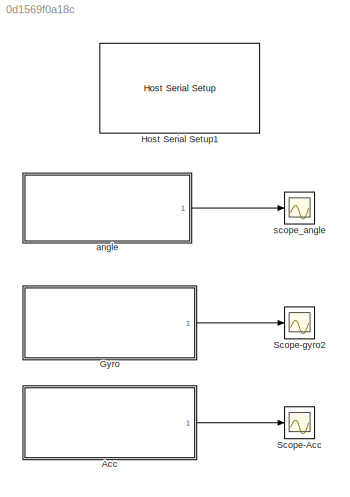
MODEL slx_0d1569f0a18c
KIND model
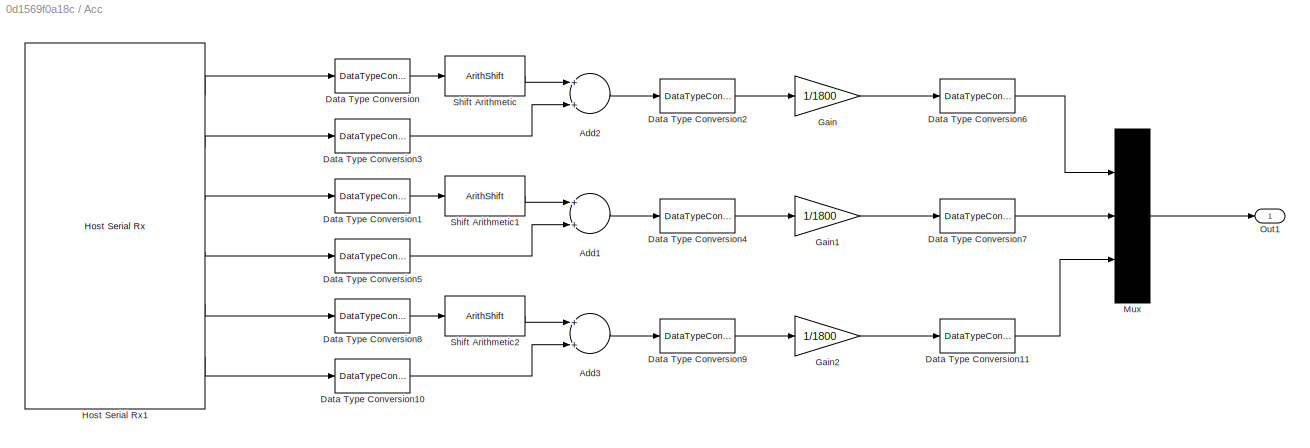
BLOCK [SubSystem] Acc
  Ports = [0, 1]
  RequestExecContextInheritance = off
BLOCK [Sum] Acc/Add1
  InputSameDT = off
  OutDataTypeStr = Inherit: Inherit via internal rule
  Ports = [2, 1]
  SaturateOnIntegerOverflow = off
BLOCK [Sum] Acc/Add2
  InputSameDT = off
  OutDataTypeStr = Inherit: Inherit via internal rule
  Ports = [2, 1]
  SaturateOnIntegerOverflow = off
BLOCK [Sum] Acc/Add3
  InputSameDT = off
  OutDataTypeStr = Inherit: Inherit via internal rule
  Ports = [2, 1]
  SaturateOnIntegerOverflow = off
BLOCK [DataTypeConversion] Acc/Data Type Conversion
  OutDataTypeStr = uint16
  RndMeth = Floor
  SaturateOnIntegerOverflow = off
BLOCK [DataTypeConversion] Acc/Data Type Conversion1
  OutDataTypeStr = uint16
  RndMeth = Floor
  SaturateOnIntegerOverflow = off
BLOCK [DataTypeConversion] Acc/Data Type Conversion10
  OutDataTypeStr = uint16
  RndMeth = Floor
  SaturateOnIntegerOverflow = off
BLOCK [DataTypeConversion] Acc/Data Type Conversion11
  OutDataTypeStr = single
  RndMeth = Floor
  SaturateOnIntegerOverflow = off
BLOCK [DataTypeConversion] Acc/Data Type Conversion2
  OutDataTypeStr = int16
  RndMeth = Floor
  SaturateOnIntegerOverflow = off
BLOCK [DataTypeConversion] Acc/Data Type Conversion3
  OutDataTypeStr = uint16
  RndMeth = Floor
  SaturateOnIntegerOverflow = off
BLOCK [DataTypeConversion] Acc/Data Type Conversion4
  OutDataTypeStr = int16
  RndMeth = Floor
  SaturateOnIntegerOverflow = off
BLOCK [DataTypeConversion] Acc/Data Type Conversion5
  OutDataTypeStr = uint16
  RndMeth = Floor
  SaturateOnIntegerOverflow = off
BLOCK [DataTypeConversion] Acc/Data Type Conversion6
  OutDataTypeStr = single
  RndMeth = Floor
  SaturateOnIntegerOverflow = off
BLOCK [DataTypeConversion] Acc/Data Type Conversion7
  OutDataTypeStr = single
  RndMeth = Floor
  SaturateOnIntegerOverflow = off
BLOCK [DataTypeConversion] Acc/Data Type Conversion8
  OutDataTypeStr = uint16
  RndMeth = Floor
  SaturateOnIntegerOverflow = off
BLOCK [DataTypeConversion] Acc/Data Type Conversion9
  OutDataTypeStr = int16
  RndMeth = Floor
  SaturateOnIntegerOverflow = off
BLOCK [Gain] Acc/Gain
  Gain = 1/1800
  OutDataTypeStr = Inherit: Inherit via internal rule
  ParamDataTypeStr = Inherit: Inherit via internal rule
  SaturateOnIntegerOverflow = off
BLOCK [Gain] Acc/Gain1
  Gain = 1/1800
  OutDataTypeStr = Inherit: Inherit via internal rule
  ParamDataTypeStr = Inherit: Inherit via internal rule
  SaturateOnIntegerOverflow = off
BLOCK [Gain] Acc/Gain2
  Gain = 1/1800
  OutDataTypeStr = Inherit: Inherit via internal rule
  ParamDataTypeStr = Inherit: Inherit via internal rule
  SaturateOnIntegerOverflow = off
BLOCK [Reference] Acc/Host Serial Rx1  REF=amg_usbconverter_n_connect_lib/Host Serial Rx
  Ports = [0, 6]
  SourceBlock = amg_usbconverter_n_connect_lib/Host Serial Rx
  SourceType = amg_usbconverter_n_connect
  asciiformat = '%d,%f'
  autoport = 'COM4'
  baudrate = 115200
  binheader = 'ff fa'
  binterminator = '0d 0a'
  blockid = AccHostSerialRx1
  cinputportlabel = 0
  compat = 0
  conf = rx
  coutputportlabel = A
  databits = 8
  enablecustomportlabel = off
  enableinitialvalues = off
  flowcontrol = None
  initialvalues = []
  inputportlabel = {}
  inputporttype = []
  inputportwidth = []
  optionstring = []
  outputportlabel = {'uint8','uint8','uint8','uint8','uint8','uint8'}
  outputporttype = [3 3 3 3 3 3]
  outputportwidth = [1 1 1 1 1 1]
  packetmode = Binary
  parity = None
  port = <auto>
  portpinstr = 0
  porttype_double = 0
  porttype_int16 = 0
  porttype_int32 = 0
  porttype_int8 = 0
  porttype_single = 0
  porttype_uint16 = 0
  porttype_uint32 = 0
  porttype_uint8 = 6
  rx_asciiterminator = CRLF (0x0D 0x0A - "\r\n")
  sampletime = -1
  stopbit = 1
  timeout = 5
  transfer = Blocking
  tx_asciiterminator = CRLF (0x0D 0x0A - "\r\n")
BLOCK [Mux] Acc/Mux
  DisplayOption = bar
  Inputs = 3
  Ports = [3, 1]
BLOCK [Outport] Acc/Out1
  IconDisplay = Port number
BLOCK [ArithShift] Acc/Shift Arithmetic
  BitShiftDirection = Left
  BitShiftNumber = 8
  InputPortMap = u0
  Ports = [1, 1]
BLOCK [ArithShift] Acc/Shift Arithmetic1
  BitShiftDirection = Left
  BitShiftNumber = 8
  InputPortMap = u0
  Ports = [1, 1]
BLOCK [ArithShift] Acc/Shift Arithmetic2
  BitShiftDirection = Left
  BitShiftNumber = 8
  InputPortMap = u0
  Ports = [1, 1]
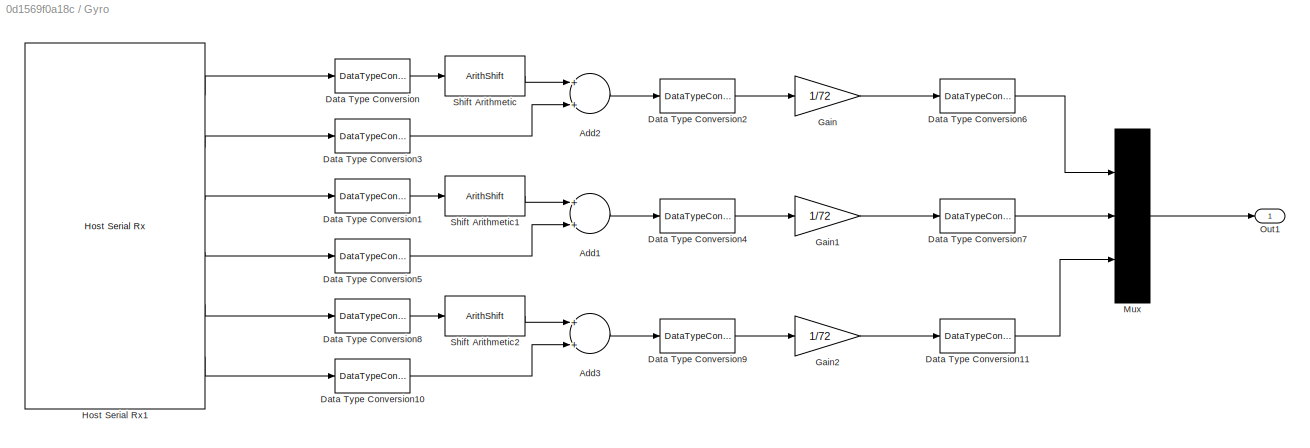
BLOCK [SubSystem] Gyro
  Commented = on
  Ports = [0, 1]
  RequestExecContextInheritance = off
BLOCK [Sum] Gyro/Add1
  InputSameDT = off
  OutDataTypeStr = Inherit: Inherit via internal rule
  Ports = [2, 1]
  SaturateOnIntegerOverflow = off
BLOCK [Sum] Gyro/Add2
  InputSameDT = off
  OutDataTypeStr = Inherit: Inherit via internal rule
  Ports = [2, 1]
  SaturateOnIntegerOverflow = off
BLOCK [Sum] Gyro/Add3
  InputSameDT = off
  OutDataTypeStr = Inherit: Inherit via internal rule
  Ports = [2, 1]
  SaturateOnIntegerOverflow = off
BLOCK [DataTypeConversion] Gyro/Data Type Conversion
  OutDataTypeStr = uint16
  RndMeth = Floor
  SaturateOnIntegerOverflow = off
BLOCK [DataTypeConversion] Gyro/Data Type Conversion1
  OutDataTypeStr = uint16
  RndMeth = Floor
  SaturateOnIntegerOverflow = off
BLOCK [DataTypeConversion] Gyro/Data Type Conversion10
  OutDataTypeStr = uint16
  RndMeth = Floor
  SaturateOnIntegerOverflow = off
BLOCK [DataTypeConversion] Gyro/Data Type Conversion11
  OutDataTypeStr = single
  RndMeth = Floor
  SaturateOnIntegerOverflow = off
BLOCK [DataTypeConversion] Gyro/Data Type Conversion2
  OutDataTypeStr = int16
  RndMeth = Floor
  SaturateOnIntegerOverflow = off
BLOCK [DataTypeConversion] Gyro/Data Type Conversion3
  OutDataTypeStr = uint16
  RndMeth = Floor
  SaturateOnIntegerOverflow = off
BLOCK [DataTypeConversion] Gyro/Data Type Conversion4
  OutDataTypeStr = int16
  RndMeth = Floor
  SaturateOnIntegerOverflow = off
BLOCK [DataTypeConversion] Gyro/Data Type Conversion5
  OutDataTypeStr = uint16
  RndMeth = Floor
  SaturateOnIntegerOverflow = off
BLOCK [DataTypeConversion] Gyro/Data Type Conversion6
  OutDataTypeStr = single
  RndMeth = Floor
  SaturateOnIntegerOverflow = off
BLOCK [DataTypeConversion] Gyro/Data Type Conversion7
  OutDataTypeStr = single
  RndMeth = Floor
  SaturateOnIntegerOverflow = off
BLOCK [DataTypeConversion] Gyro/Data Type Conversion8
  OutDataTypeStr = uint16
  RndMeth = Floor
  SaturateOnIntegerOverflow = off
BLOCK [DataTypeConversion] Gyro/Data Type Conversion9
  OutDataTypeStr = int16
  RndMeth = Floor
  SaturateOnIntegerOverflow = off
BLOCK [Gain] Gyro/Gain
  Gain = 1/72
  OutDataTypeStr = Inherit: Inherit via internal rule
  ParamDataTypeStr = Inherit: Inherit via internal rule
  SaturateOnIntegerOverflow = off
BLOCK [Gain] Gyro/Gain1
  Gain = 1/72
  OutDataTypeStr = Inherit: Inherit via internal rule
  ParamDataTypeStr = Inherit: Inherit via internal rule
  SaturateOnIntegerOverflow = off
BLOCK [Gain] Gyro/Gain2
  Gain = 1/72
  OutDataTypeStr = Inherit: Inherit via internal rule
  ParamDataTypeStr = Inherit: Inherit via internal rule
  SaturateOnIntegerOverflow = off
BLOCK [Reference] Gyro/Host Serial Rx1  REF=amg_usbconverter_n_connect_lib/Host Serial Rx
  Ports = [0, 6]
  SourceBlock = amg_usbconverter_n_connect_lib/Host Serial Rx
  SourceType = amg_usbconverter_n_connect
  asciiformat = '%d,%f'
  autoport = 'COM4'
  baudrate = 115200
  binheader = 'ff fb'
  binterminator = 'fb ff'
  blockid = GyroHostSerialRx1
  cinputportlabel = 0
  compat = 0
  conf = rx
  coutputportlabel = A
  databits = 8
  enablecustomportlabel = off
  enableinitialvalues = off
  flowcontrol = None
  initialvalues = []
  inputportlabel = {}
  inputporttype = []
  inputportwidth = []
  optionstring = []
  outputportlabel = {'uint8','uint8','uint8','uint8','uint8','uint8'}
  outputporttype = [3 3 3 3 3 3]
  outputportwidth = [1 1 1 1 1 1]
  packetmode = Binary
  parity = None
  port = COM4
  portpinstr = 0
  porttype_double = 0
  porttype_int16 = 0
  porttype_int32 = 0
  porttype_int8 = 0
  porttype_single = 0
  porttype_uint16 = 0
  porttype_uint32 = 0
  porttype_uint8 = 6
  rx_asciiterminator = CRLF (0x0D 0x0A - "\r\n")
  sampletime = -1
  stopbit = 1
  timeout = 5
  transfer = Blocking
  tx_asciiterminator = CRLF (0x0D 0x0A - "\r\n")
BLOCK [Mux] Gyro/Mux
  DisplayOption = bar
  Inputs = 3
  Ports = [3, 1]
BLOCK [Outport] Gyro/Out1
  IconDisplay = Port number
BLOCK [ArithShift] Gyro/Shift Arithmetic
  BitShiftDirection = Left
  BitShiftNumber = 8
  InputPortMap = u0
  Ports = [1, 1]
BLOCK [ArithShift] Gyro/Shift Arithmetic1
  BitShiftDirection = Left
  BitShiftNumber = 8
  InputPortMap = u0
  Ports = [1, 1]
BLOCK [ArithShift] Gyro/Shift Arithmetic2
  BitShiftDirection = Left
  BitShiftNumber = 8
  InputPortMap = u0
  Ports = [1, 1]
BLOCK [Reference] Host Serial Setup1  REF=amg_usbconverter_n_connect_lib/Host Serial Setup
  Ports = []
  SourceBlock = amg_usbconverter_n_connect_lib/Host Serial Setup
  SourceType = amg_usbconverter_n_connect
  asciiformat = '%d %u %x'
  autoport = 'COM4'
  baudrate = 115200
  binheader = '7E 7E'
  binterminator = '03 03'
  blockid = HostSerialSetup1
  cinputportlabel = 0
  compat = 0
  conf = setup
  coutputportlabel = A
  databits = 8
  enablecustomportlabel = off
  flowcontrol = None
  initialvalues = []
  inputportlabel = {}
  inputporttype = []
  inputportwidth = []
  optionstring = []
  outputportlabel = {}
  outputporttype = []
  outputportwidth = []
  packetmode = Binary
  parity = None
  port = <auto>
  portpinstr = 0
  porttype_double = 0
  porttype_int16 = 0
  porttype_int32 = 0
  porttype_int8 = 0
  porttype_single = 1
  porttype_uint16 = 0
  porttype_uint32 = 2
  porttype_uint8 = 0
  rx_asciiterminator = CRLF (0x0D 0x0A - "\r\n")
  sampletime = 1/204
  stopbit = 1
  timeout = 2
  transfer = Blocking
  tx_asciiterminator = CRLF (0x0D 0x0A - "\r\n")
BLOCK [Scope] Scope-Acc
  DataFormat = StructureWithTime
  Floating = off
  LimitDataPoints = off
  NumInputPorts = 1
  Ports = [1]
  SampleTime = 0
  SaveName = ScopeData1
  ShowLegends = off
  TimeRange = 10
  YMax = 0.05
  YMin = -1.05
  ZoomMode = xonly
BLOCK [Scope] Scope-gyro2
  Commented = on
  DataFormat = StructureWithTime
  Floating = off
  LimitDataPoints = off
  NumInputPorts = 1
  Ports = [1]
  SampleTime = 0
  SaveName = ScopeData3
  ShowLegends = off
  TimeRange = 10
  YMax = 2.5
  YMin = -27.5
  ZoomMode = xonly
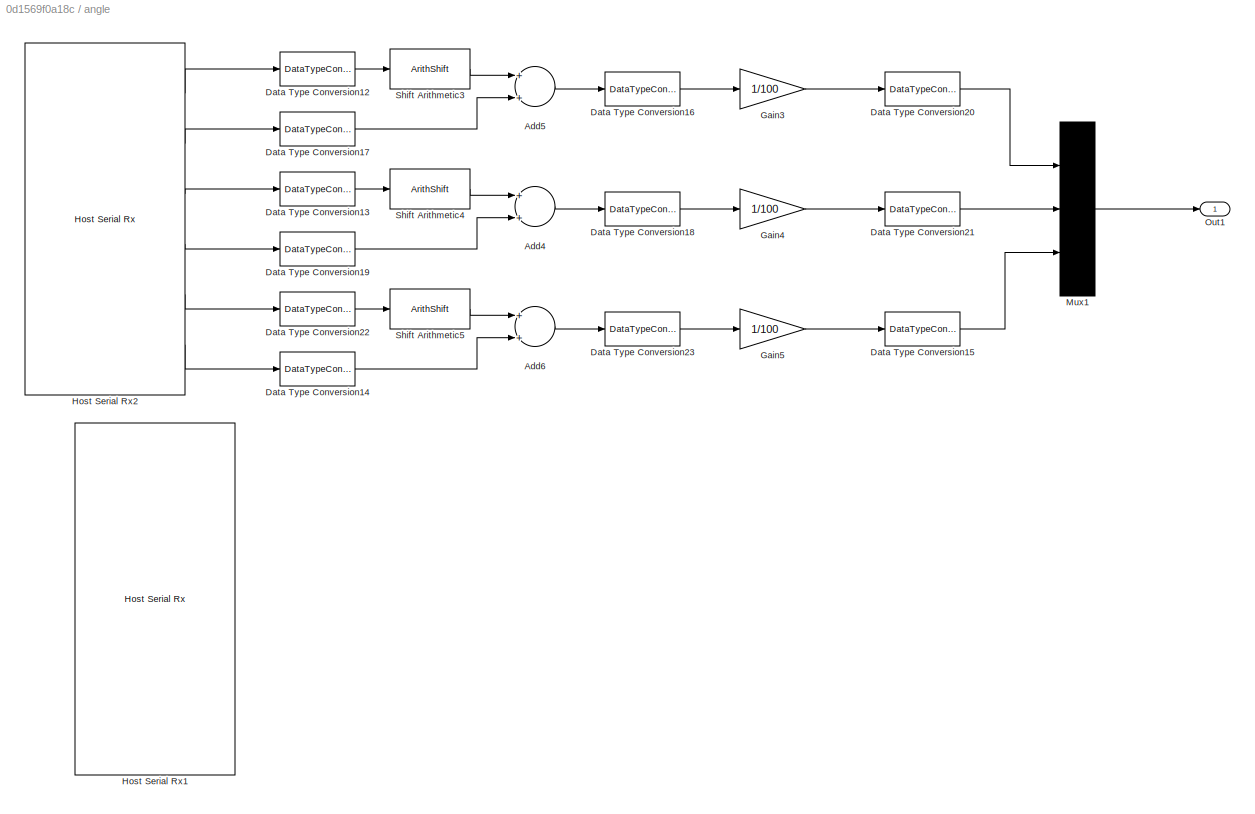
BLOCK [SubSystem] angle
  Ports = [0, 1]
  RequestExecContextInheritance = off
BLOCK [Sum] angle/Add4
  InputSameDT = off
  OutDataTypeStr = Inherit: Inherit via internal rule
  Ports = [2, 1]
  SaturateOnIntegerOverflow = off
BLOCK [Sum] angle/Add5
  InputSameDT = off
  OutDataTypeStr = Inherit: Inherit via internal rule
  Ports = [2, 1]
  SaturateOnIntegerOverflow = off
BLOCK [Sum] angle/Add6
  InputSameDT = off
  OutDataTypeStr = Inherit: Inherit via internal rule
  Ports = [2, 1]
  SaturateOnIntegerOverflow = off
BLOCK [DataTypeConversion] angle/Data Type Conversion12
  OutDataTypeStr = uint16
  RndMeth = Floor
  SaturateOnIntegerOverflow = off
BLOCK [DataTypeConversion] angle/Data Type Conversion13
  OutDataTypeStr = uint16
  RndMeth = Floor
  SaturateOnIntegerOverflow = off
BLOCK [DataTypeConversion] angle/Data Type Conversion14
  OutDataTypeStr = uint16
  RndMeth = Floor
  SaturateOnIntegerOverflow = off
BLOCK [DataTypeConversion] angle/Data Type Conversion15
  OutDataTypeStr = single
  RndMeth = Floor
  SaturateOnIntegerOverflow = off
BLOCK [DataTypeConversion] angle/Data Type Conversion16
  OutDataTypeStr = int16
  RndMeth = Floor
  SaturateOnIntegerOverflow = off
BLOCK [DataTypeConversion] angle/Data Type Conversion17
  OutDataTypeStr = uint16
  RndMeth = Floor
  SaturateOnIntegerOverflow = off
BLOCK [DataTypeConversion] angle/Data Type Conversion18
  OutDataTypeStr = int16
  RndMeth = Floor
  SaturateOnIntegerOverflow = off
BLOCK [DataTypeConversion] angle/Data Type Conversion19
  OutDataTypeStr = uint16
  RndMeth = Floor
  SaturateOnIntegerOverflow = off
BLOCK [DataTypeConversion] angle/Data Type Conversion20
  OutDataTypeStr = single
  RndMeth = Floor
  SaturateOnIntegerOverflow = off
BLOCK [DataTypeConversion] angle/Data Type Conversion21
  OutDataTypeStr = single
  RndMeth = Floor
  SaturateOnIntegerOverflow = off
BLOCK [DataTypeConversion] angle/Data Type Conversion22
  OutDataTypeStr = uint16
  RndMeth = Floor
  SaturateOnIntegerOverflow = off
BLOCK [DataTypeConversion] angle/Data Type Conversion23
  OutDataTypeStr = int16
  RndMeth = Floor
  SaturateOnIntegerOverflow = off
BLOCK [Gain] angle/Gain3
  Gain = 1/100
  OutDataTypeStr = Inherit: Inherit via internal rule
  ParamDataTypeStr = Inherit: Inherit via internal rule
  SaturateOnIntegerOverflow = off
BLOCK [Gain] angle/Gain4
  Gain = 1/100
  OutDataTypeStr = Inherit: Inherit via internal rule
  ParamDataTypeStr = Inherit: Inherit via internal rule
  SaturateOnIntegerOverflow = off
BLOCK [Gain] angle/Gain5
  Gain = 1/100
  OutDataTypeStr = Inherit: Inherit via internal rule
  ParamDataTypeStr = Inherit: Inherit via internal rule
  SaturateOnIntegerOverflow = off
BLOCK [Reference] angle/Host Serial Rx1  REF=amg_usbconverter_n_connect_lib/Host Serial Rx
  Commented = on
  Ports = [0, 6]
  SourceBlock = amg_usbconverter_n_connect_lib/Host Serial Rx
  SourceType = amg_usbconverter_n_connect
  asciiformat = '%d,%f'
  autoport = 'COM4'
  baudrate = 115200
  binheader = 'ff fb'
  binterminator = ''
  blockid = angleHostSerialRx1
  cinputportlabel = 0
  compat = 0
  conf = rx
  coutputportlabel = A
  databits = 8
  enablecustomportlabel = off
  enableinitialvalues = off
  flowcontrol = None
  initialvalues = []
  inputportlabel = {}
  inputporttype = []
  inputportwidth = []
  optionstring = []
  outputportlabel = {'uint8','uint8','uint8','uint8','uint8','uint8'}
  outputporttype = [3 3 3 3 3 3]
  outputportwidth = [1 1 1 1 1 1]
  packetmode = Binary
  parity = None
  port = <auto>
  portpinstr = 0
  porttype_double = 0
  porttype_int16 = 0
  porttype_int32 = 0
  porttype_int8 = 0
  porttype_single = 0
  porttype_uint16 = 0
  porttype_uint32 = 0
  porttype_uint8 = 6
  rx_asciiterminator = CRLF (0x0D 0x0A - "\r\n")
  sampletime = -1
  stopbit = 1
  timeout = 5
  transfer = Blocking
  tx_asciiterminator = CRLF (0x0D 0x0A - "\r\n")
BLOCK [Reference] angle/Host Serial Rx2  REF=amg_usbconverter_n_connect_lib/Host Serial Rx
  Ports = [0, 6]
  SourceBlock = amg_usbconverter_n_connect_lib/Host Serial Rx
  SourceType = amg_usbconverter_n_connect
  asciiformat = '%d,%f'
  autoport = 'COM4'
  baudrate = 115200
  binheader = 'ff fc'
  binterminator = '0d 0a'
  blockid = angleHostSerialRx2
  cinputportlabel = 0
  compat = 0
  conf = rx
  coutputportlabel = A
  databits = 8
  enablecustomportlabel = off
  enableinitialvalues = off
  flowcontrol = None
  initialvalues = []
  inputportlabel = {}
  inputporttype = []
  inputportwidth = []
  optionstring = []
  outputportlabel = {'uint8','uint8','uint8','uint8','uint8','uint8'}
  outputporttype = [3 3 3 3 3 3]
  outputportwidth = [1 1 1 1 1 1]
  packetmode = Binary
  parity = None
  port = <auto>
  portpinstr = 0
  porttype_double = 0
  porttype_int16 = 0
  porttype_int32 = 0
  porttype_int8 = 0
  porttype_single = 0
  porttype_uint16 = 0
  porttype_uint32 = 0
  porttype_uint8 = 6
  rx_asciiterminator = CRLF (0x0D 0x0A - "\r\n")
  sampletime = -1
  stopbit = 1
  timeout = 5
  transfer = Blocking
  tx_asciiterminator = CRLF (0x0D 0x0A - "\r\n")
BLOCK [Mux] angle/Mux1
  DisplayOption = bar
  Inputs = 3
  Ports = [3, 1]
BLOCK [Outport] angle/Out1
  IconDisplay = Port number
BLOCK [ArithShift] angle/Shift Arithmetic3
  BitShiftDirection = Left
  BitShiftNumber = 8
  InputPortMap = u0
  Ports = [1, 1]
BLOCK [ArithShift] angle/Shift Arithmetic4
  BitShiftDirection = Left
  BitShiftNumber = 8
  InputPortMap = u0
  Ports = [1, 1]
BLOCK [ArithShift] angle/Shift Arithmetic5
  BitShiftDirection = Left
  BitShiftNumber = 8
  InputPortMap = u0
  Ports = [1, 1]
BLOCK [Scope] scope_angle
  DataFormat = StructureWithTime
  Floating = off
  LimitDataPoints = off
  NumInputPorts = 1
  Ports = [1]
  SampleTime = 0
  ShowLegends = off
  TimeRange = 10
  YMax = 15
  YMin = 0
  ZoomMode = xonly
LINE Acc/Add1:1 -> Acc/Data Type Conversion4:1
LINE Acc/Add2:1 -> Acc/Data Type Conversion2:1
LINE Acc/Add3:1 -> Acc/Data Type Conversion9:1
LINE Acc/Data Type Conversion10:1 -> Acc/Add3:2
LINE Acc/Data Type Conversion11:1 -> Acc/Mux:3
LINE Acc/Data Type Conversion1:1 -> Acc/Shift Arithmetic1:1
LINE Acc/Data Type Conversion2:1 -> Acc/Gain:1
LINE Acc/Data Type Conversion3:1 -> Acc/Add2:2
LINE Acc/Data Type Conversion4:1 -> Acc/Gain1:1
LINE Acc/Data Type Conversion5:1 -> Acc/Add1:2
LINE Acc/Data Type Conversion6:1 -> Acc/Mux:1
LINE Acc/Data Type Conversion7:1 -> Acc/Mux:2
LINE Acc/Data Type Conversion8:1 -> Acc/Shift Arithmetic2:1
LINE Acc/Data Type Conversion9:1 -> Acc/Gain2:1
LINE Acc/Data Type Conversion:1 -> Acc/Shift Arithmetic:1
LINE Acc/Gain1:1 -> Acc/Data Type Conversion7:1
LINE Acc/Gain2:1 -> Acc/Data Type Conversion11:1
LINE Acc/Gain:1 -> Acc/Data Type Conversion6:1
LINE Acc/Host Serial Rx1:1 -> Acc/Data Type Conversion:1
LINE Acc/Host Serial Rx1:2 -> Acc/Data Type Conversion3:1
LINE Acc/Host Serial Rx1:3 -> Acc/Data Type Conversion1:1
LINE Acc/Host Serial Rx1:4 -> Acc/Data Type Conversion5:1
LINE Acc/Host Serial Rx1:5 -> Acc/Data Type Conversion8:1
LINE Acc/Host Serial Rx1:6 -> Acc/Data Type Conversion10:1
LINE Acc/Mux:1 -> Acc/Out1:1
LINE Acc/Shift Arithmetic1:1 -> Acc/Add1:1
LINE Acc/Shift Arithmetic2:1 -> Acc/Add3:1
LINE Acc/Shift Arithmetic:1 -> Acc/Add2:1
LINE Acc:1 -> Scope-Acc:1
LINE Gyro/Add1:1 -> Gyro/Data Type Conversion4:1
LINE Gyro/Add2:1 -> Gyro/Data Type Conversion2:1
LINE Gyro/Add3:1 -> Gyro/Data Type Conversion9:1
LINE Gyro/Data Type Conversion10:1 -> Gyro/Add3:2
LINE Gyro/Data Type Conversion11:1 -> Gyro/Mux:3
LINE Gyro/Data Type Conversion1:1 -> Gyro/Shift Arithmetic1:1
LINE Gyro/Data Type Conversion2:1 -> Gyro/Gain:1
LINE Gyro/Data Type Conversion3:1 -> Gyro/Add2:2
LINE Gyro/Data Type Conversion4:1 -> Gyro/Gain1:1
LINE Gyro/Data Type Conversion5:1 -> Gyro/Add1:2
LINE Gyro/Data Type Conversion6:1 -> Gyro/Mux:1
LINE Gyro/Data Type Conversion7:1 -> Gyro/Mux:2
LINE Gyro/Data Type Conversion8:1 -> Gyro/Shift Arithmetic2:1
LINE Gyro/Data Type Conversion9:1 -> Gyro/Gain2:1
LINE Gyro/Data Type Conversion:1 -> Gyro/Shift Arithmetic:1
LINE Gyro/Gain1:1 -> Gyro/Data Type Conversion7:1
LINE Gyro/Gain2:1 -> Gyro/Data Type Conversion11:1
LINE Gyro/Gain:1 -> Gyro/Data Type Conversion6:1
LINE Gyro/Host Serial Rx1:1 -> Gyro/Data Type Conversion:1
LINE Gyro/Host Serial Rx1:2 -> Gyro/Data Type Conversion3:1
LINE Gyro/Host Serial Rx1:3 -> Gyro/Data Type Conversion1:1
LINE Gyro/Host Serial Rx1:4 -> Gyro/Data Type Conversion5:1
LINE Gyro/Host Serial Rx1:5 -> Gyro/Data Type Conversion8:1
LINE Gyro/Host Serial Rx1:6 -> Gyro/Data Type Conversion10:1
LINE Gyro/Mux:1 -> Gyro/Out1:1
LINE Gyro/Shift Arithmetic1:1 -> Gyro/Add1:1
LINE Gyro/Shift Arithmetic2:1 -> Gyro/Add3:1
LINE Gyro/Shift Arithmetic:1 -> Gyro/Add2:1
LINE Gyro:1 -> Scope-gyro2:1
LINE angle/Add4:1 -> angle/Data Type Conversion18:1
LINE angle/Add5:1 -> angle/Data Type Conversion16:1
LINE angle/Add6:1 -> angle/Data Type Conversion23:1
LINE angle/Data Type Conversion12:1 -> angle/Shift Arithmetic3:1
LINE angle/Data Type Conversion13:1 -> angle/Shift Arithmetic4:1
LINE angle/Data Type Conversion14:1 -> angle/Add6:2
LINE angle/Data Type Conversion15:1 -> angle/Mux1:3
LINE angle/Data Type Conversion16:1 -> angle/Gain3:1
LINE angle/Data Type Conversion17:1 -> angle/Add5:2
LINE angle/Data Type Conversion18:1 -> angle/Gain4:1
LINE angle/Data Type Conversion19:1 -> angle/Add4:2
LINE angle/Data Type Conversion20:1 -> angle/Mux1:1
LINE angle/Data Type Conversion21:1 -> angle/Mux1:2
LINE angle/Data Type Conversion22:1 -> angle/Shift Arithmetic5:1
LINE angle/Data Type Conversion23:1 -> angle/Gain5:1
LINE angle/Gain3:1 -> angle/Data Type Conversion20:1
LINE angle/Gain4:1 -> angle/Data Type Conversion21:1
LINE angle/Gain5:1 -> angle/Data Type Conversion15:1
LINE angle/Host Serial Rx2:1 -> angle/Data Type Conversion12:1
LINE angle/Host Serial Rx2:2 -> angle/Data Type Conversion17:1
LINE angle/Host Serial Rx2:3 -> angle/Data Type Conversion13:1
LINE angle/Host Serial Rx2:4 -> angle/Data Type Conversion19:1
LINE angle/Host Serial Rx2:5 -> angle/Data Type Conversion22:1
LINE angle/Host Serial Rx2:6 -> angle/Data Type Conversion14:1
LINE angle/Mux1:1 -> angle/Out1:1
LINE angle/Shift Arithmetic3:1 -> angle/Add5:1
LINE angle/Shift Arithmetic4:1 -> angle/Add4:1
LINE angle/Shift Arithmetic5:1 -> angle/Add6:1
LINE angle:1 -> scope_angle:1
